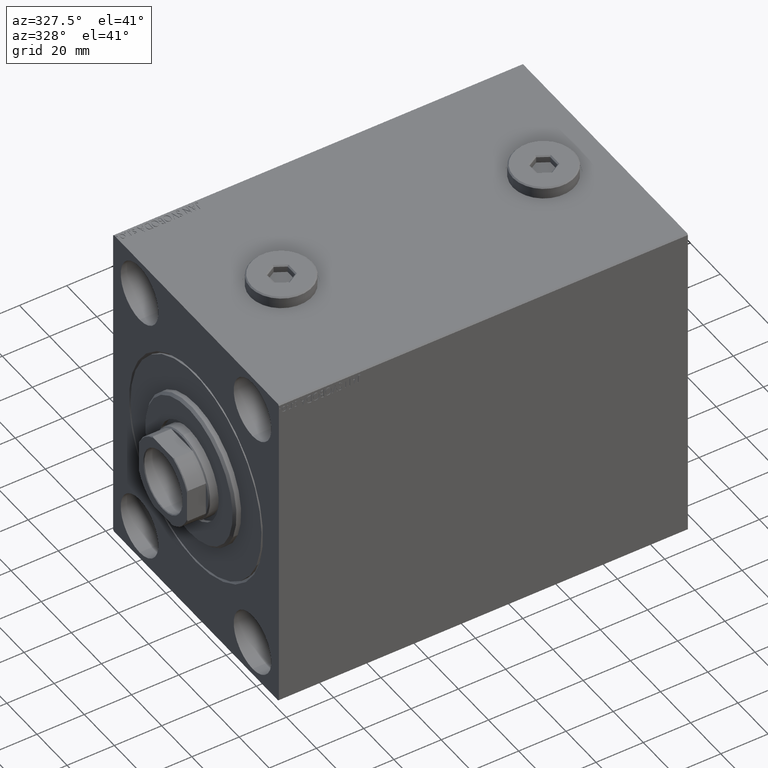
[diagram: clean part render]
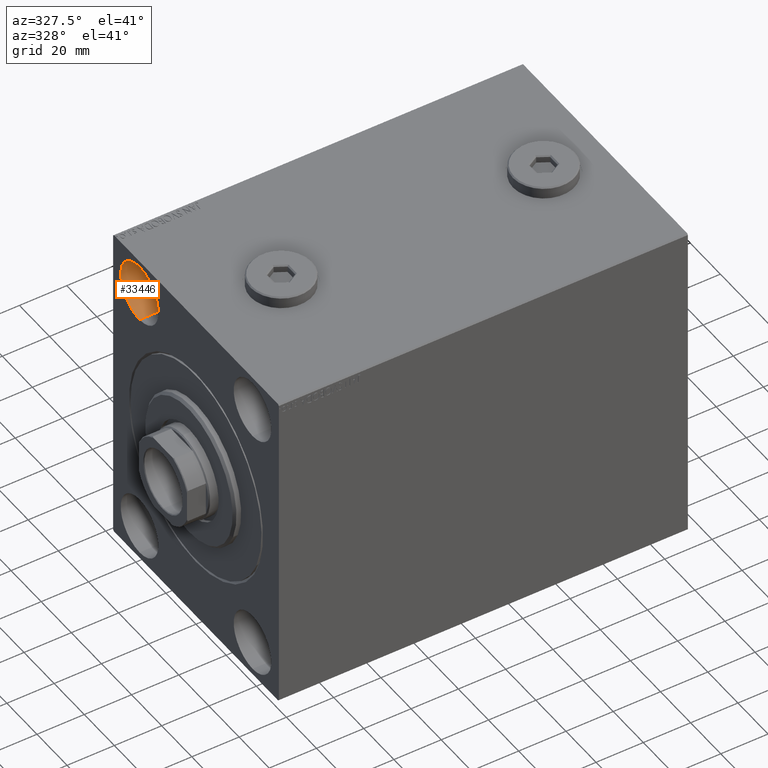
[diagram: same view with one face highlighted and labeled with its STEP entity id]
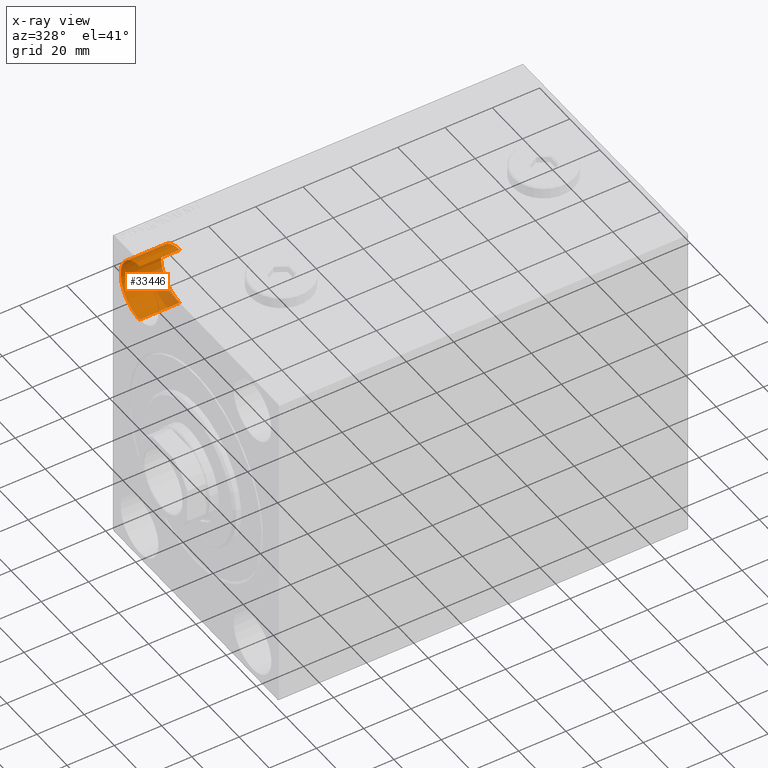
[diagram: x-ray of the same camera — body ghosted, the highlighted face saturated]
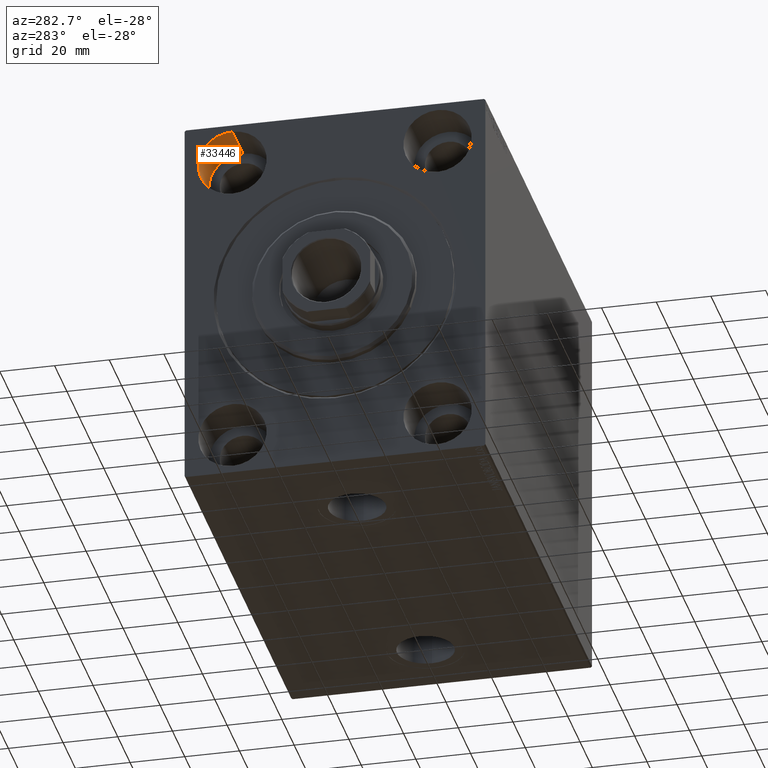
[diagram: same view with one face highlighted and labeled with its STEP entity id]
A machine part, auxiliary view. The second image highlights one B-rep face of the part: STEP entity #33446.
The next image is the same camera in x-ray: the body ghosted, the highlighted face saturated — about 19% of this face is hidden behind the body in this view.
A second angle (auxiliary view) of the same face is appended — the face is thin or edge-on in the first view.
In plain terms, the highlighted cylindrical surface (edge-blend (fillet) strip) has radius 12.5 mm, axis along (-1, -0, -0).
Its self-contained STEP definition (entity closure, byte-faithful):
#99 = EDGE_LOOP ( 'NONE', ( #23308, #10339, #43067, #17483 ) ) ;
#659 = CARTESIAN_POINT ( 'NONE',  ( 0.000000000000000000, 37.50000000000000711, 55.00000000000000711 ) ) ;
#1220 = CARTESIAN_POINT ( 'NONE',  ( 0.000000000000000000, 37.50000000000000711, 42.50000000000000711 ) ) ;
#1366 = FACE_OUTER_BOUND ( 'NONE', #99, .T. ) ;
#2209 = CARTESIAN_POINT ( 'NONE',  ( 17.00000000000000000, 37.50000000000000711, 67.50000000000000000 ) ) ;
#2257 = CIRCLE ( 'NONE', #16914, 12.49999999999999645 ) ;
#4930 = CARTESIAN_POINT ( 'NONE',  ( 17.00000000000000000, 37.50000000000000711, 42.50000000000000711 ) ) ;
#8022 = VECTOR ( 'NONE', #23057, 1000.000000000000000 ) ;
#9084 = EDGE_CURVE ( 'NONE', #23976, #17804, #34380, .T. ) ;
#9298 = CARTESIAN_POINT ( 'NONE',  ( 17.00000000000000000, 37.50000000000000711, 67.50000000000000000 ) ) ;
#10339 = ORIENTED_EDGE ( 'NONE', *, *, #12174, .F. ) ;
#10417 = EDGE_CURVE ( 'NONE', #10462, #23976, #44592, .T. ) ;
#10462 = VERTEX_POINT ( 'NONE', #2209 ) ;
#12174 = EDGE_CURVE ( 'NONE', #10462, #40415, #2257, .T. ) ;
#15575 = CARTESIAN_POINT ( 'NONE',  ( 17.00000000000000000, 37.50000000000000711, 55.00000000000000711 ) ) ;
#16914 = AXIS2_PLACEMENT_3D ( 'NONE', #38843, #27652, #24206 ) ;
#17358 = VECTOR ( 'NONE', #25794, 1000.000000000000000 ) ;
#17483 = ORIENTED_EDGE ( 'NONE', *, *, #9084, .T. ) ;
#17804 = VERTEX_POINT ( 'NONE', #1220 ) ;
#20470 = AXIS2_PLACEMENT_3D ( 'NONE', #659, #35047, #21065 ) ;
#21065 = DIRECTION ( 'NONE',  ( 0.000000000000000000, 0.000000000000000000, 1.000000000000000000 ) ) ;
#23057 = DIRECTION ( 'NONE',  ( -1.000000000000000000, -0.000000000000000000, -0.000000000000000000 ) ) ;
#23308 = ORIENTED_EDGE ( 'NONE', *, *, #42516, .F. ) ;
#23976 = VERTEX_POINT ( 'NONE', #27633 ) ;
#24206 = DIRECTION ( 'NONE',  ( 0.000000000000000000, 0.000000000000000000, 1.000000000000000000 ) ) ;
#25794 = DIRECTION ( 'NONE',  ( -1.000000000000000000, -0.000000000000000000, -0.000000000000000000 ) ) ;
#26577 = CYLINDRICAL_SURFACE ( 'NONE', #39130, 12.49999999999999645 ) ;
#27633 = CARTESIAN_POINT ( 'NONE',  ( 0.000000000000000000, 37.50000000000000711, 67.50000000000000000 ) ) ;
#27652 = DIRECTION ( 'NONE',  ( -1.000000000000000000, 0.000000000000000000, 0.000000000000000000 ) ) ;
#33446 = ADVANCED_FACE ( 'NONE', ( #1366 ), #26577, .F. ) ;
#34380 = CIRCLE ( 'NONE', #20470, 12.49999999999999645 ) ;
#35047 = DIRECTION ( 'NONE',  ( -1.000000000000000000, 0.000000000000000000, 0.000000000000000000 ) ) ;
#36330 = LINE ( 'NONE', #4930, #17358 ) ;
#38843 = CARTESIAN_POINT ( 'NONE',  ( 17.00000000000000000, 37.50000000000000711, 55.00000000000000711 ) ) ;
#39130 = AXIS2_PLACEMENT_3D ( 'NONE', #15575, #40312, #40538 ) ;
#40312 = DIRECTION ( 'NONE',  ( -1.000000000000000000, -0.000000000000000000, -0.000000000000000000 ) ) ;
#40415 = VERTEX_POINT ( 'NONE', #43017 ) ;
#40538 = DIRECTION ( 'NONE',  ( 0.000000000000000000, 0.000000000000000000, 1.000000000000000000 ) ) ;
#42516 = EDGE_CURVE ( 'NONE', #40415, #17804, #36330, .T. ) ;
#43017 = CARTESIAN_POINT ( 'NONE',  ( 17.00000000000000000, 37.50000000000000711, 42.50000000000000711 ) ) ;
#43067 = ORIENTED_EDGE ( 'NONE', *, *, #10417, .T. ) ;
#44592 = LINE ( 'NONE', #9298, #8022 ) ;